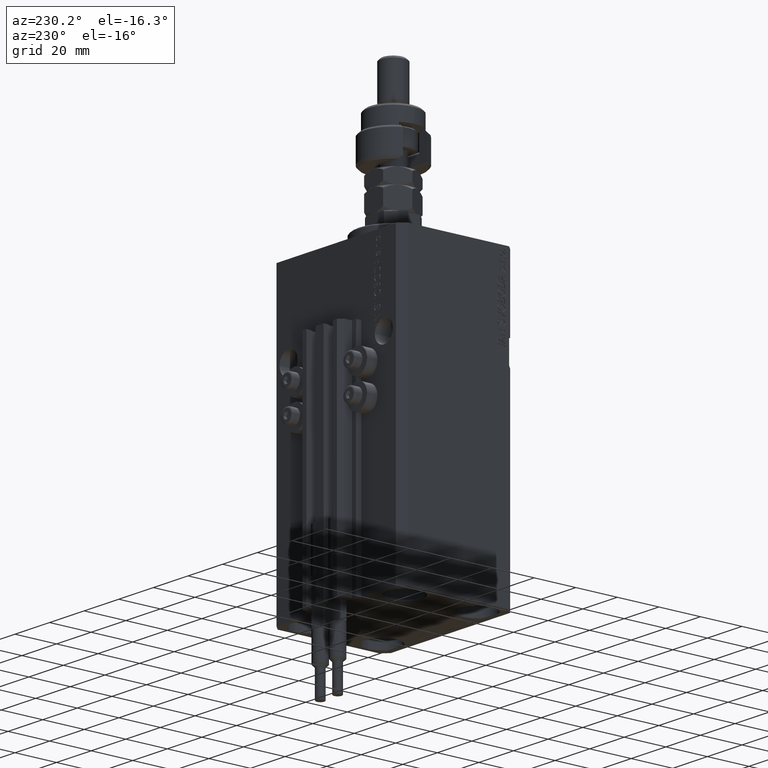
[diagram: clean part render]
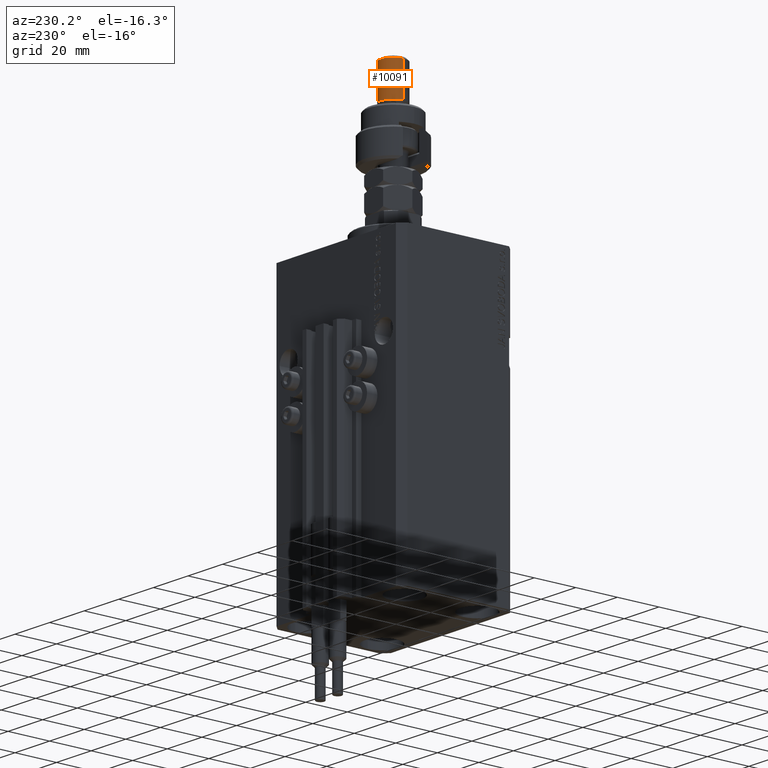
[diagram: same view with one face highlighted and labeled with its STEP entity id]
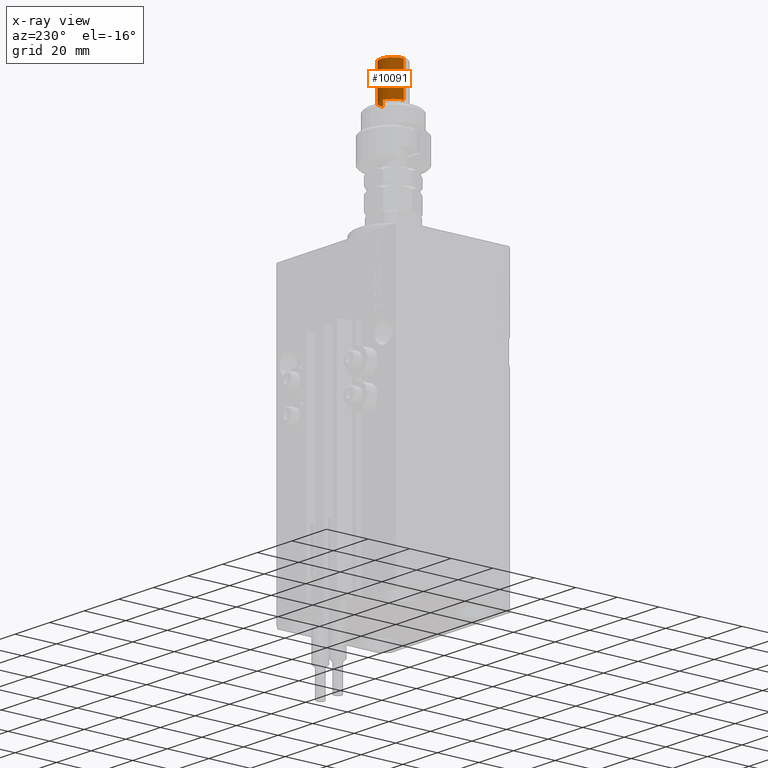
[diagram: x-ray of the same camera — body ghosted, the highlighted face saturated]
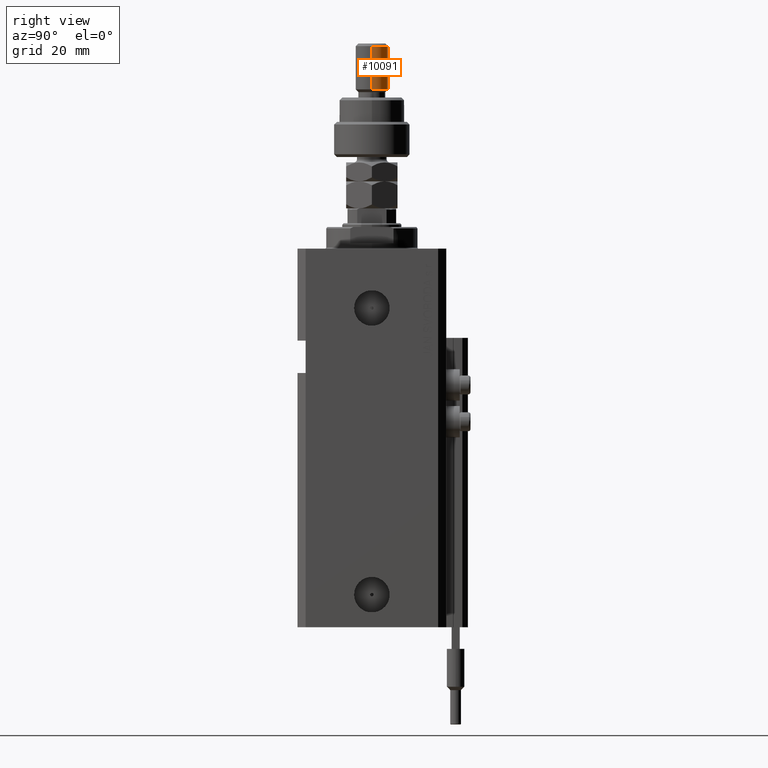
[diagram: same view with one face highlighted and labeled with its STEP entity id]
A machine part, auxiliary view. The second image highlights one B-rep face of the part: STEP entity #10091.
The next image is the same camera in x-ray: the body ghosted, the highlighted face saturated — about 0% of this face is hidden behind the body in this view.
A second angle (right view) of the same face is appended — the face is thin or edge-on in the first view.
In plain terms, the highlighted cylindrical surface (edge-blend (fillet) strip) has radius 6 mm, axis along (-0, -0, -1).
Its self-contained STEP definition (entity closure, byte-faithful):
#670 = CARTESIAN_POINT ( 'NONE',  ( 0.000000000000000000, 0.000000000000000000, 41.99999999999999289 ) ) ;
#1687 = EDGE_CURVE ( 'NONE', #41085, #28991, #32854, .T. ) ;
#4698 = LINE ( 'NONE', #20268, #31697 ) ;
#5121 = ORIENTED_EDGE ( 'NONE', *, *, #25061, .T. ) ;
#5756 = VERTEX_POINT ( 'NONE', #47004 ) ;
#10091 = ADVANCED_FACE ( 'NONE', ( #20332 ), #19573, .T. ) ;
#12072 = EDGE_CURVE ( 'NONE', #41085, #5756, #12307, .T. ) ;
#12307 = LINE ( 'NONE', #16383, #37608 ) ;
#13072 = CARTESIAN_POINT ( 'NONE',  ( 6.000000000000000888, 7.347880794884120722E-16, 40.99999999999997868 ) ) ;
#13233 = CARTESIAN_POINT ( 'NONE',  ( 6.000000000000000888, 7.347880794884120722E-16, 24.99999999999999645 ) ) ;
#14469 = EDGE_LOOP ( 'NONE', ( #20838, #47582, #5121, #42968 ) ) ;
#15604 = DIRECTION ( 'NONE',  ( -0.000000000000000000, -0.000000000000000000, 1.000000000000000000 ) ) ;
#16383 = CARTESIAN_POINT ( 'NONE',  ( -6.000000000000000888, 0.000000000000000000, 41.99999999999999289 ) ) ;
#17140 = DIRECTION ( 'NONE',  ( -0.000000000000000000, -0.000000000000000000, -1.000000000000000000 ) ) ;
#17486 = CARTESIAN_POINT ( 'NONE',  ( 0.000000000000000000, 0.000000000000000000, 40.99999999999997868 ) ) ;
#19320 = DIRECTION ( 'NONE',  ( -1.000000000000000000, 0.000000000000000000, 0.000000000000000000 ) ) ;
#19573 = CYLINDRICAL_SURFACE ( 'NONE', #38092, 6.000000000000000888 ) ;
#20268 = CARTESIAN_POINT ( 'NONE',  ( 6.000000000000000888, 7.347880794884120722E-16, 41.99999999999999289 ) ) ;
#20332 = FACE_OUTER_BOUND ( 'NONE', #14469, .T. ) ;
#20515 = DIRECTION ( 'NONE',  ( -0.000000000000000000, -0.000000000000000000, -1.000000000000000000 ) ) ;
#20838 = ORIENTED_EDGE ( 'NONE', *, *, #1687, .T. ) ;
#20877 = CIRCLE ( 'NONE', #43694, 6.000000000000000888 ) ;
#22150 = CARTESIAN_POINT ( 'NONE',  ( -6.000000000000000888, 0.000000000000000000, 40.99999999999997868 ) ) ;
#23267 = CARTESIAN_POINT ( 'NONE',  ( 0.000000000000000000, 0.000000000000000000, 24.99999999999999645 ) ) ;
#23519 = DIRECTION ( 'NONE',  ( 1.000000000000000000, 0.000000000000000000, 0.000000000000000000 ) ) ;
#25061 = EDGE_CURVE ( 'NONE', #31639, #5756, #20877, .T. ) ;
#28991 = VERTEX_POINT ( 'NONE', #13072 ) ;
#31639 = VERTEX_POINT ( 'NONE', #13233 ) ;
#31697 = VECTOR ( 'NONE', #20515, 1000.000000000000000 ) ;
#32526 = DIRECTION ( 'NONE',  ( 0.000000000000000000, 0.000000000000000000, -1.000000000000000000 ) ) ;
#32854 = CIRCLE ( 'NONE', #32891, 6.000000000000000888 ) ;
#32891 = AXIS2_PLACEMENT_3D ( 'NONE', #17486, #32526, #45037 ) ;
#34871 = DIRECTION ( 'NONE',  ( -0.000000000000000000, -0.000000000000000000, -1.000000000000000000 ) ) ;
#37110 = EDGE_CURVE ( 'NONE', #28991, #31639, #4698, .T. ) ;
#37608 = VECTOR ( 'NONE', #17140, 1000.000000000000000 ) ;
#38092 = AXIS2_PLACEMENT_3D ( 'NONE', #670, #34871, #19320 ) ;
#41085 = VERTEX_POINT ( 'NONE', #22150 ) ;
#42968 = ORIENTED_EDGE ( 'NONE', *, *, #12072, .F. ) ;
#43694 = AXIS2_PLACEMENT_3D ( 'NONE', #23267, #15604, #23519 ) ;
#45037 = DIRECTION ( 'NONE',  ( 1.000000000000000000, 0.000000000000000000, 0.000000000000000000 ) ) ;
#47004 = CARTESIAN_POINT ( 'NONE',  ( -6.000000000000000888, 0.000000000000000000, 24.99999999999999645 ) ) ;
#47582 = ORIENTED_EDGE ( 'NONE', *, *, #37110, .T. ) ;